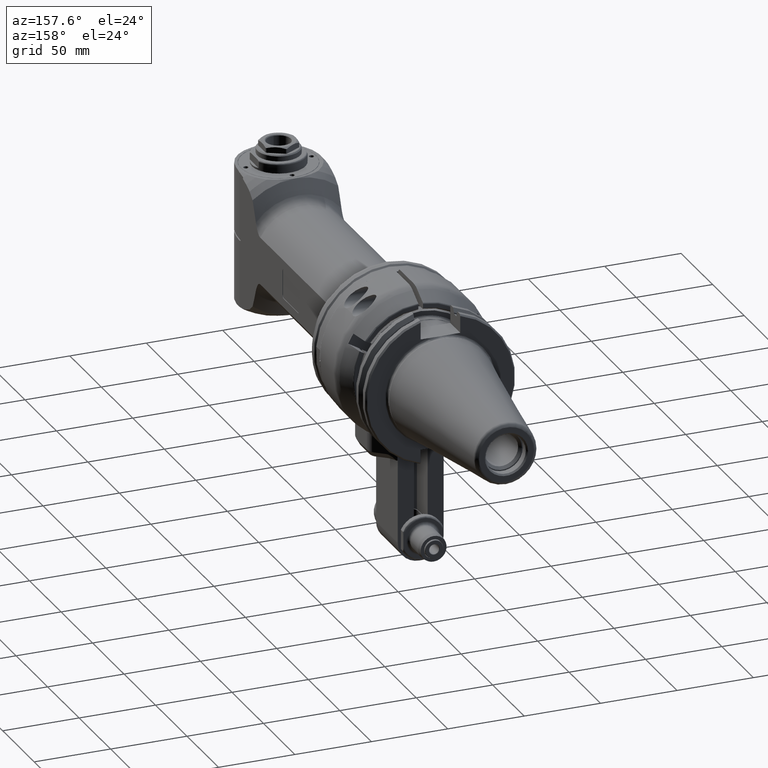
[diagram: clean part render]
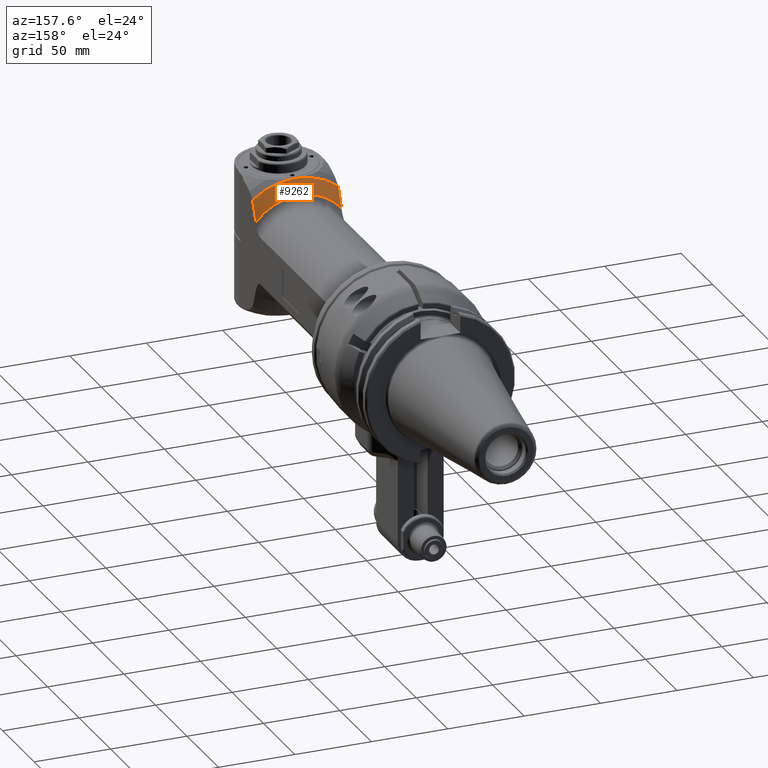
[diagram: same view with one face highlighted and labeled with its STEP entity id]
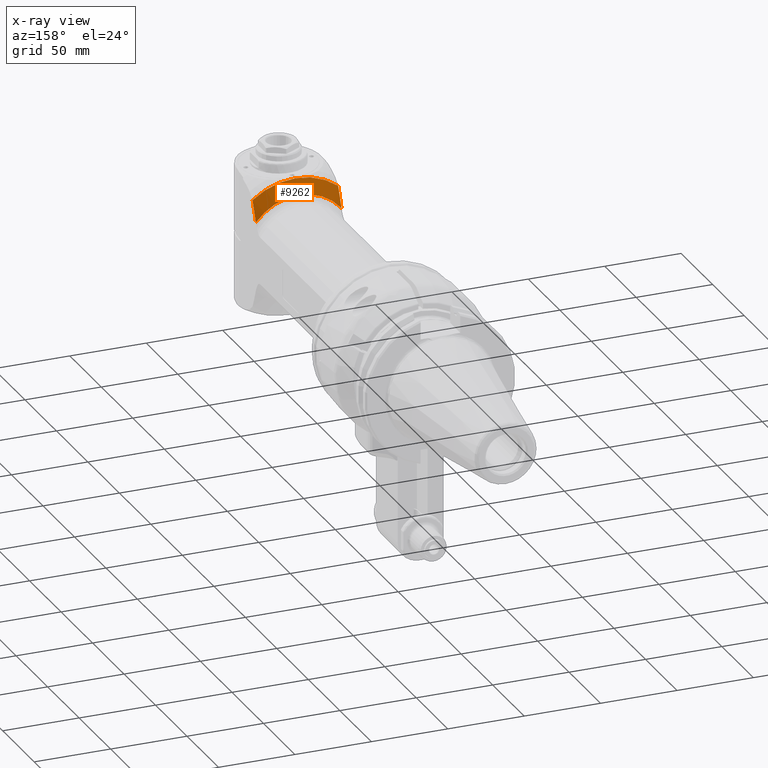
[diagram: x-ray of the same camera — body ghosted, the highlighted face saturated]
A machine part, auxiliary view. The second image highlights one B-rep face of the part: STEP entity #9262.
The next image is the same camera in x-ray: the body ghosted, the highlighted face saturated — about 0% of this face is hidden behind the body in this view.
In plain terms, the highlighted conical surface has half-angle 60 deg.
Its self-contained STEP definition (entity closure, byte-faithful):
#93=(
BOUNDED_CURVE()
B_SPLINE_CURVE(2,(#16399,#16400,#16401),.UNSPECIFIED.,.F.,.F.)
B_SPLINE_CURVE_WITH_KNOTS((3,3),(2.03905497828461,3.44407312542204),
 .UNSPECIFIED.)
CURVE()
GEOMETRIC_REPRESENTATION_ITEM()
RATIONAL_B_SPLINE_CURVE((1.39135917011265,1.50428489523826,1.58701905543919))
REPRESENTATION_ITEM('')
);
#101=(
BOUNDED_CURVE()
B_SPLINE_CURVE(2,(#16567,#16568,#16569),.UNSPECIFIED.,.F.,.F.)
B_SPLINE_CURVE_WITH_KNOTS((3,3),(2.12423992486837,3.54863226023933),
 .UNSPECIFIED.)
CURVE()
GEOMETRIC_REPRESENTATION_ITEM()
RATIONAL_B_SPLINE_CURVE((1.40912553974038,1.52349322192306,1.60728382082311))
REPRESENTATION_ITEM('')
);
#331=CONICAL_SURFACE('',#10284,40.5,1.0471975511966);
#2432=FACE_OUTER_BOUND('',#3046,.T.);
#3046=EDGE_LOOP('',(#8020,#8021,#8022,#8023,#8024));
#3651=CIRCLE('',#10283,36.);
#3652=CIRCLE('',#10285,45.);
#3653=CIRCLE('',#10286,45.);
#4431=VERTEX_POINT('',#16383);
#4432=VERTEX_POINT('',#16398);
#4456=VERTEX_POINT('',#16549);
#4457=VERTEX_POINT('',#16566);
#4458=VERTEX_POINT('',#16570);
#5659=EDGE_CURVE('',#4432,#4431,#93,.T.);
#5688=EDGE_CURVE('',#4456,#4431,#3651,.T.);
#5690=EDGE_CURVE('',#4457,#4456,#101,.T.);
#5691=EDGE_CURVE('',#4457,#4458,#3652,.T.);
#5692=EDGE_CURVE('',#4458,#4432,#3653,.T.);
#8020=ORIENTED_EDGE('',*,*,#5688,.F.);
#8021=ORIENTED_EDGE('',*,*,#5690,.F.);
#8022=ORIENTED_EDGE('',*,*,#5691,.T.);
#8023=ORIENTED_EDGE('',*,*,#5692,.T.);
#8024=ORIENTED_EDGE('',*,*,#5659,.T.);
#9262=ADVANCED_FACE('',(#2432),#331,.T.);
#10283=AXIS2_PLACEMENT_3D('',#16550,#12653,#12654);
#10284=AXIS2_PLACEMENT_3D('',#16565,#12655,#12656);
#10285=AXIS2_PLACEMENT_3D('',#16571,#12657,#12658);
#10286=AXIS2_PLACEMENT_3D('',#16572,#12659,#12660);
#12653=DIRECTION('center_axis',(-1.,0.,0.));
#12654=DIRECTION('ref_axis',(0.,-0.628539361054693,-0.777777777777791));
#12655=DIRECTION('center_axis',(1.,0.,0.));
#12656=DIRECTION('ref_axis',(0.,-1.,1.22464679914735E-16));
#12657=DIRECTION('center_axis',(-1.,0.,0.));
#12658=DIRECTION('ref_axis',(0.,-0.782840664613719,-0.622222222222215));
#12659=DIRECTION('center_axis',(-1.,0.,0.));
#12660=DIRECTION('ref_axis',(0.,-1.,0.));
#16383=CARTESIAN_POINT('',(158.3094010768,-22.62741699797,28.));
#16398=CARTESIAN_POINT('',(163.505553565893,-35.2278300211891,27.9999999663342));
#16399=CARTESIAN_POINT('Ctrl Pts',(163.505553553357,-35.2278300268799,28.));
#16400=CARTESIAN_POINT('Ctrl Pts',(160.341636957151,-28.2276005599298,28.));
#16401=CARTESIAN_POINT('Ctrl Pts',(158.309401076753,-22.627416997987,28.));
#16549=CARTESIAN_POINT('',(158.3094010768,-22.62741699797,-28.));
#16550=CARTESIAN_POINT('Origin',(158.3094010768,0.,0.));
#16565=CARTESIAN_POINT('Origin',(160.9074772881,0.,0.));
#16566=CARTESIAN_POINT('',(163.505553565937,-35.2278300212649,-27.9999999663118));
#16567=CARTESIAN_POINT('Ctrl Pts',(163.505553553393,-35.2278300269595,-28.));
#16568=CARTESIAN_POINT('Ctrl Pts',(160.341636957163,-28.2276005599609,-28.));
#16569=CARTESIAN_POINT('Ctrl Pts',(158.309401076753,-22.627416997987,-28.));
#16570=CARTESIAN_POINT('',(163.5055534995,-45.,-1.422195694545E-13));
#16571=CARTESIAN_POINT('Origin',(163.5055534995,0.,0.));
#16572=CARTESIAN_POINT('Origin',(163.5055534995,0.,0.));